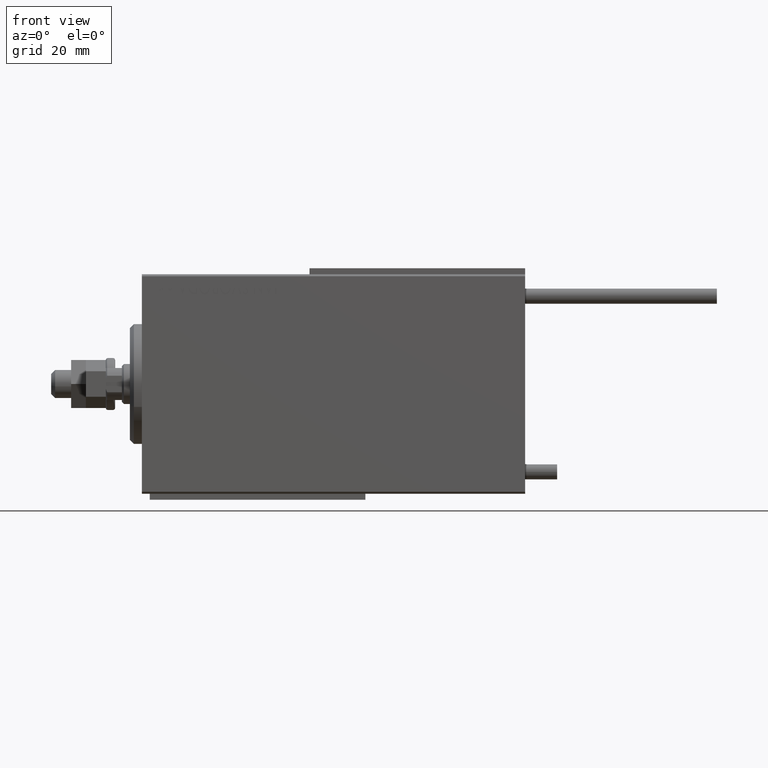
[diagram: clean part render]
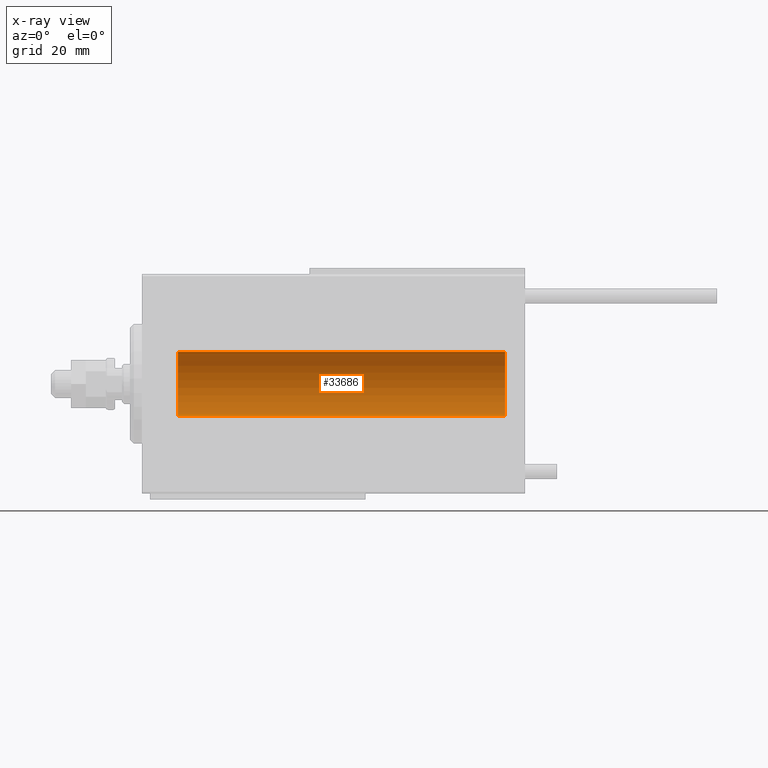
[diagram: x-ray — body ghosted, one internal face saturated and labeled with its STEP entity id]
A machine part, front view, then the same camera in x-ray: the body is ghosted and one INTERNAL B-rep face — a face not visible from any outside direction — is saturated and labeled: STEP entity #33686.
In plain terms, the highlighted cylindrical surface (edge-blend (fillet) strip) has radius 8 mm, axis along (-1, -0, -0).
Its self-contained STEP definition (entity closure, byte-faithful):
#1668 = ORIENTED_EDGE ( 'NONE', *, *, #28404, .T. ) ;
#2436 = AXIS2_PLACEMENT_3D ( 'NONE', #42212, #26779, #23466 ) ;
#4061 = CIRCLE ( 'NONE', #18646, 7.999999999999998224 ) ;
#4078 = EDGE_CURVE ( 'NONE', #34920, #24129, #30372, .T. ) ;
#6815 = CARTESIAN_POINT ( 'NONE',  ( 91.00000000000000000, 0.000000000000000000, 0.000000000000000000 ) ) ;
#9411 = CARTESIAN_POINT ( 'NONE',  ( 9.000000000000007105, 0.000000000000000000, 7.999999999999998224 ) ) ;
#9804 = CARTESIAN_POINT ( 'NONE',  ( 9.000000000000007105, 0.000000000000000000, 0.000000000000000000 ) ) ;
#10281 = ORIENTED_EDGE ( 'NONE', *, *, #4078, .F. ) ;
#14272 = ORIENTED_EDGE ( 'NONE', *, *, #45085, .T. ) ;
#15168 = CARTESIAN_POINT ( 'NONE',  ( 91.00000000000000000, 0.000000000000000000, 7.999999999999998224 ) ) ;
#18646 = AXIS2_PLACEMENT_3D ( 'NONE', #6815, #21550, #21305 ) ;
#18918 = CYLINDRICAL_SURFACE ( 'NONE', #2436, 7.999999999999998224 ) ;
#19006 = CARTESIAN_POINT ( 'NONE',  ( 91.00000000000000000, 9.797174393178823685E-16, -7.999999999999998224 ) ) ;
#20058 = AXIS2_PLACEMENT_3D ( 'NONE', #9804, #47010, #35839 ) ;
#21305 = DIRECTION ( 'NONE',  ( 0.000000000000000000, 0.000000000000000000, 1.000000000000000000 ) ) ;
#21550 = DIRECTION ( 'NONE',  ( -1.000000000000000000, 0.000000000000000000, 0.000000000000000000 ) ) ;
#21759 = VECTOR ( 'NONE', #38969, 1000.000000000000000 ) ;
#23466 = DIRECTION ( 'NONE',  ( 0.000000000000000000, 0.000000000000000000, 1.000000000000000000 ) ) ;
#24129 = VERTEX_POINT ( 'NONE', #27163 ) ;
#25068 = VERTEX_POINT ( 'NONE', #25134 ) ;
#25134 = CARTESIAN_POINT ( 'NONE',  ( 91.00000000000000000, 0.000000000000000000, 7.999999999999998224 ) ) ;
#26779 = DIRECTION ( 'NONE',  ( -1.000000000000000000, -0.000000000000000000, -0.000000000000000000 ) ) ;
#26833 = DIRECTION ( 'NONE',  ( -1.000000000000000000, -0.000000000000000000, -0.000000000000000000 ) ) ;
#27163 = CARTESIAN_POINT ( 'NONE',  ( 9.000000000000007105, 9.797174393178823685E-16, -7.999999999999998224 ) ) ;
#28404 = EDGE_CURVE ( 'NONE', #45643, #24129, #36233, .T. ) ;
#28485 = ORIENTED_EDGE ( 'NONE', *, *, #49089, .F. ) ;
#30372 = LINE ( 'NONE', #49402, #40844 ) ;
#33686 = ADVANCED_FACE ( 'NONE', ( #38169 ), #18918, .F. ) ;
#34756 = EDGE_LOOP ( 'NONE', ( #10281, #28485, #14272, #1668 ) ) ;
#34920 = VERTEX_POINT ( 'NONE', #19006 ) ;
#35839 = DIRECTION ( 'NONE',  ( 0.000000000000000000, 0.000000000000000000, 1.000000000000000000 ) ) ;
#36233 = CIRCLE ( 'NONE', #20058, 7.999999999999998224 ) ;
#38169 = FACE_OUTER_BOUND ( 'NONE', #34756, .T. ) ;
#38969 = DIRECTION ( 'NONE',  ( -1.000000000000000000, -0.000000000000000000, -0.000000000000000000 ) ) ;
#40844 = VECTOR ( 'NONE', #26833, 1000.000000000000000 ) ;
#42212 = CARTESIAN_POINT ( 'NONE',  ( 91.00000000000000000, 0.000000000000000000, 0.000000000000000000 ) ) ;
#45085 = EDGE_CURVE ( 'NONE', #25068, #45643, #47087, .T. ) ;
#45643 = VERTEX_POINT ( 'NONE', #9411 ) ;
#47010 = DIRECTION ( 'NONE',  ( -1.000000000000000000, 0.000000000000000000, 0.000000000000000000 ) ) ;
#47087 = LINE ( 'NONE', #15168, #21759 ) ;
#49089 = EDGE_CURVE ( 'NONE', #25068, #34920, #4061, .T. ) ;
#49402 = CARTESIAN_POINT ( 'NONE',  ( 91.00000000000000000, 9.797174393178823685E-16, -7.999999999999998224 ) ) ;